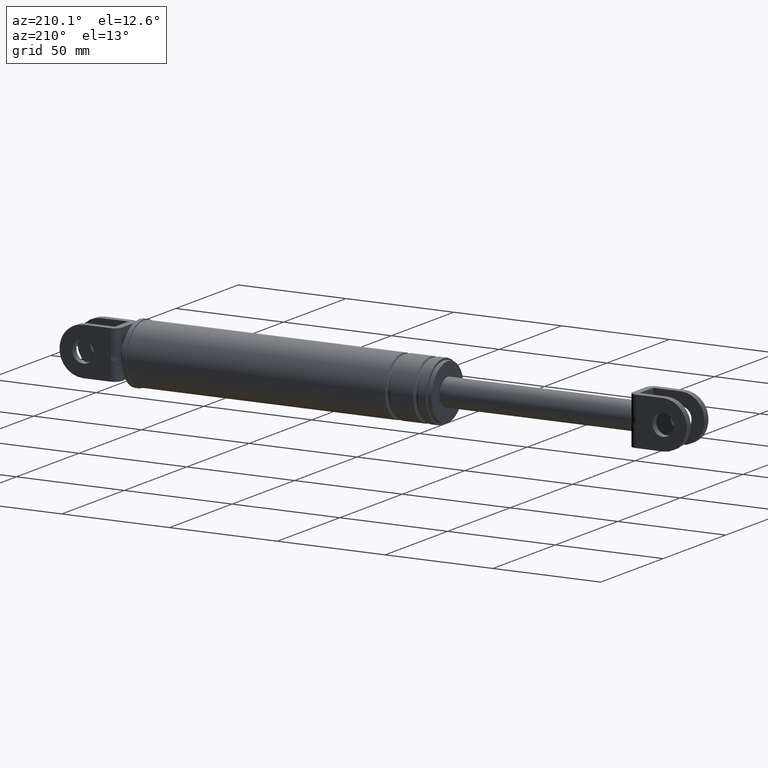
[diagram: clean part render]
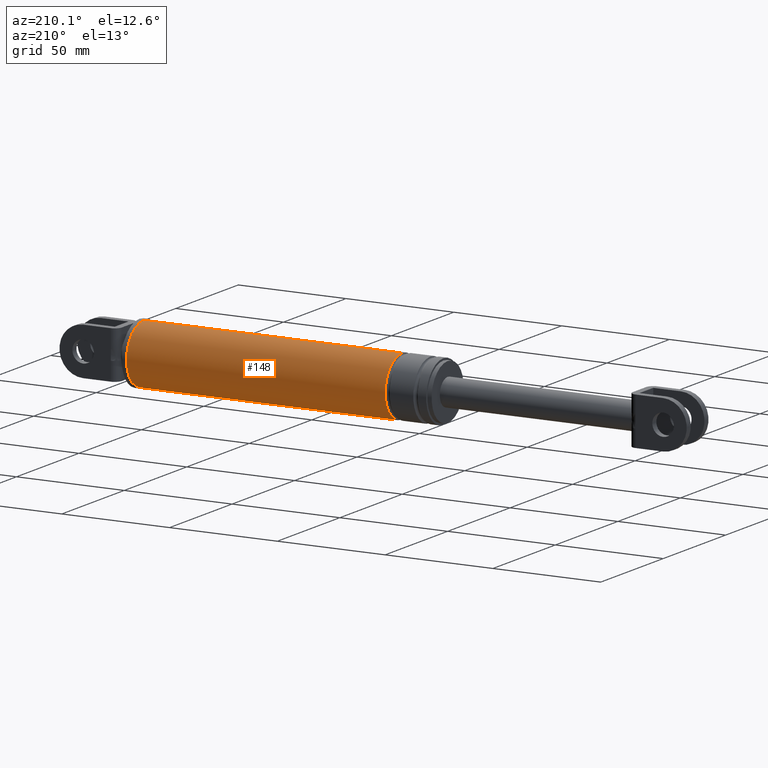
[diagram: same view with one face highlighted and labeled with its STEP entity id]
A machine part, auxiliary view. The second image highlights one B-rep face of the part: STEP entity #148.
In plain terms, the highlighted cylindrical surface (edge-blend (fillet) strip) has radius 13.7 mm, axis along (1, 0, 0).
Its self-contained STEP definition (entity closure, byte-faithful):
#148=ADVANCED_FACE('',(#543),#542,.T.);
#542=CYLINDRICAL_SURFACE('',#1203,1.37000000000E+001);
#543=FACE_OUTER_BOUND('',#1204,.T.);
#1200=CARTESIAN_POINT('',(0.00000000000E+000,0.00000000000E+000,1.88436951829E+002));
#1201=DIRECTION('',(1.00000000000E+000,-0.00000000000E+000,-0.00000000000E+000));
#1202=DIRECTION('',(-0.00000000000E+000,-0.00000000000E+000,-1.00000000000E+000));
#1203=AXIS2_PLACEMENT_3D('',#1200,#1201,#1202);
#1204=EDGE_LOOP('',(#1568,#1569,#1570,#1571));
#1568=ORIENTED_EDGE('',*,*,#1769,.T.);
#1569=ORIENTED_EDGE('',*,*,#1798,.F.);
#1570=ORIENTED_EDGE('',*,*,#1786,.F.);
#1571=ORIENTED_EDGE('',*,*,#1799,.T.);
#1769=EDGE_CURVE('',#2269,#2268,#2276,.T.);
#1786=EDGE_CURVE('',#2384,#2385,#2386,.T.);
#1798=EDGE_CURVE('',#2385,#2268,#2462,.T.);
#1799=EDGE_CURVE('',#2384,#2269,#2468,.T.);
#2268=VERTEX_POINT('',#3168);
#2269=VERTEX_POINT('',#3169);
#2276=CIRCLE('',#3177,1.37000000000E+001);
#2384=VERTEX_POINT('',#3236);
#2385=VERTEX_POINT('',#3237);
#2386=CIRCLE('',#3241,1.37000000000E+001);
#2462=(BOUNDED_CURVE() B_SPLINE_CURVE(1,(#3286,#3287),.UNSPECIFIED.,.F.,.F.) B_SPLINE_CURVE_WITH_KNOTS((2,2),(7.14285714548E-002,9.28571428334E-001),.UNSPECIFIED.) CURVE() GEOMETRIC_REPRESENTATION_ITEM() RATIONAL_B_SPLINE_CURVE((1.00000000000E+000,1.00000000000E+000)) REPRESENTATION_ITEM('') );
#2468=(BOUNDED_CURVE() B_SPLINE_CURVE(1,(#3288,#3289),.UNSPECIFIED.,.F.,.F.) B_SPLINE_CURVE_WITH_KNOTS((2,2),(7.14285714286E-002,9.28571428571E-001),.UNSPECIFIED.) CURVE() GEOMETRIC_REPRESENTATION_ITEM() RATIONAL_B_SPLINE_CURVE((7.50000000000E-001,7.50000000000E-001)) REPRESENTATION_ITEM('') );
#3168=CARTESIAN_POINT('',(3.27955963961E+002,0.00000000000E+000,1.74736951829E+002));
#3169=CARTESIAN_POINT('',(3.27955963961E+002,0.00000000000E+000,2.02136951829E+002));
#3174=CARTESIAN_POINT('',(3.27955963961E+002,0.00000000000E+000,1.88436951829E+002));
#3175=DIRECTION('',(-1.00000000000E+000,0.00000000000E+000,0.00000000000E+000));
#3176=DIRECTION('',(0.00000000000E+000,-1.22460635382E-016,1.00000000000E+000));
#3177=AXIS2_PLACEMENT_3D('',#3174,#3175,#3176);
#3236=CARTESIAN_POINT('',(2.07955963961E+002,0.00000000000E+000,2.02136951829E+002));
#3237=CARTESIAN_POINT('',(2.07955963961E+002,0.00000000000E+000,1.74736951829E+002));
#3238=CARTESIAN_POINT('',(2.07955963961E+002,0.00000000000E+000,1.88436951829E+002));
#3239=DIRECTION('',(-1.00000000000E+000,0.00000000000E+000,0.00000000000E+000));
#3240=DIRECTION('',(0.00000000000E+000,-1.22460635382E-016,1.00000000000E+000));
#3241=AXIS2_PLACEMENT_3D('',#3238,#3239,#3240);
#3286=CARTESIAN_POINT('',(2.07955963965E+002,0.00000000000E+000,1.74736951829E+002));
#3287=CARTESIAN_POINT('',(3.27955963928E+002,0.00000000000E+000,1.74736951829E+002));
#3288=CARTESIAN_POINT('',(2.07955963961E+002,-5.92118946467E-016,2.02136951829E+002));
#3289=CARTESIAN_POINT('',(3.27955963961E+002,-5.92118946467E-016,2.02136951829E+002));